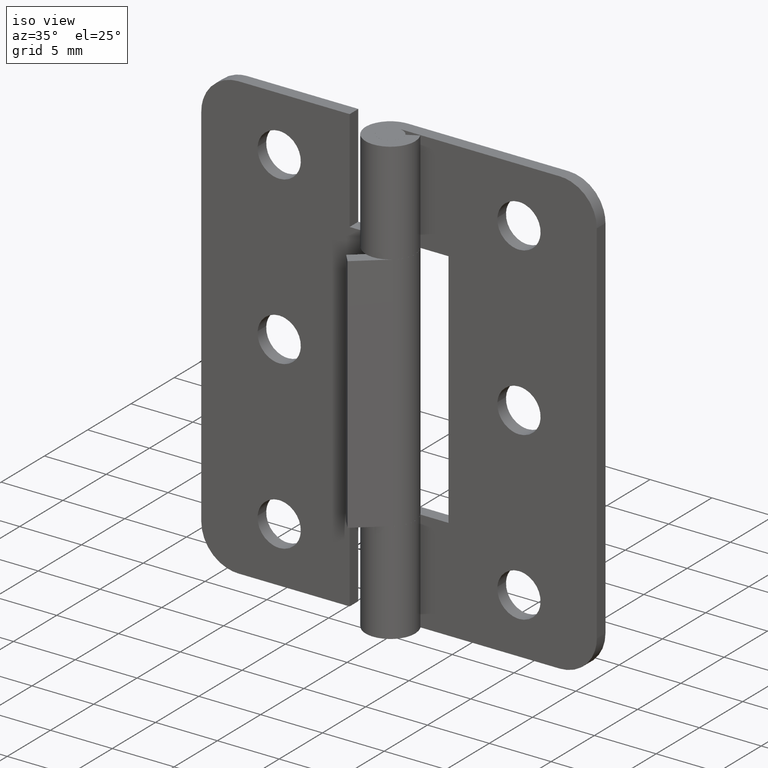
[diagram: clean part render]
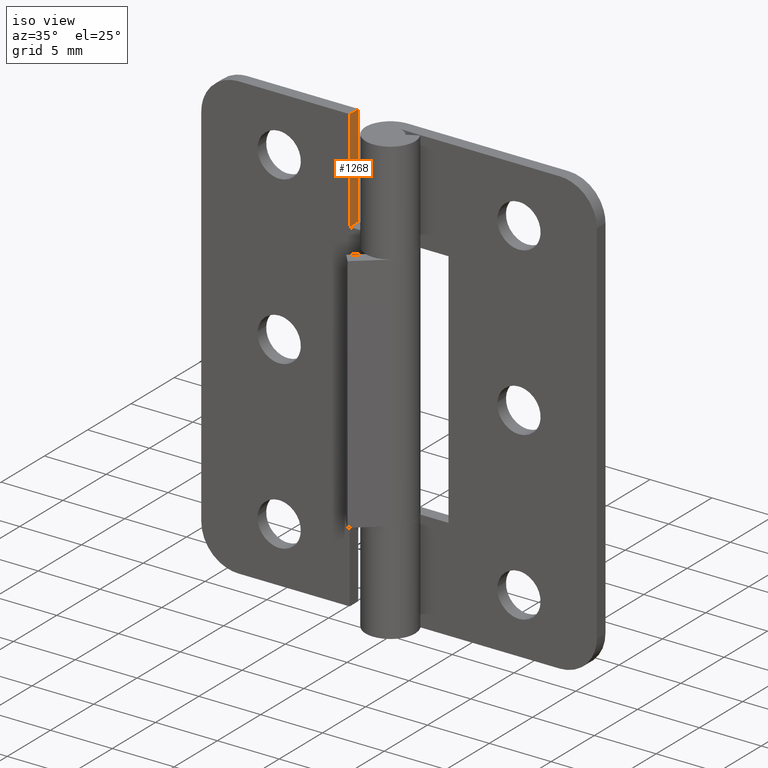
[diagram: same view with one face highlighted and labeled with its STEP entity id]
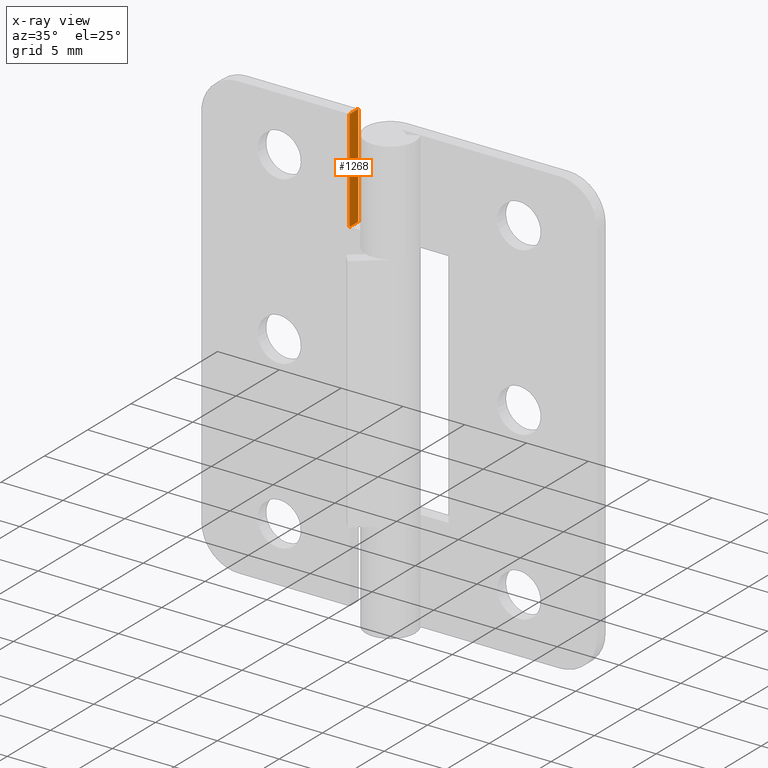
[diagram: x-ray of the same camera — body ghosted, the highlighted face saturated]
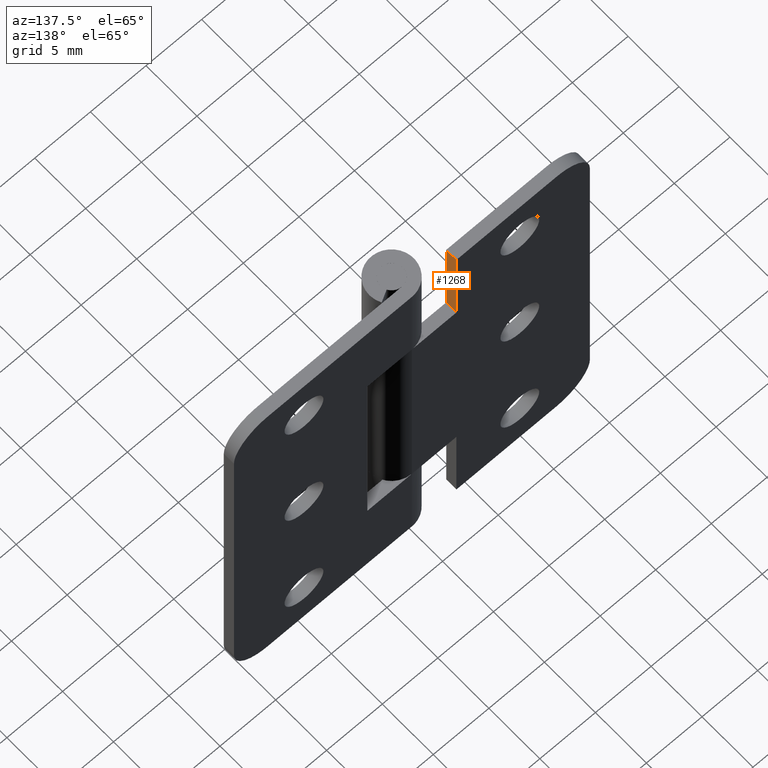
[diagram: same view with one face highlighted and labeled with its STEP entity id]
A machine part, iso view. The second image highlights one B-rep face of the part: STEP entity #1268.
The next image is the same camera in x-ray: the body ghosted, the highlighted face saturated — about 0% of this face is hidden behind the body in this view.
A second angle (auxiliary view) of the same face is appended — the face is thin or edge-on in the first view.
In plain terms, the highlighted face is a freeform B-spline surface patch.
Its self-contained STEP definition (entity closure, byte-faithful):
#1052=CARTESIAN_POINT('',(-4.0,1.0,27.750000000000000));
#1053=VERTEX_POINT('',#1052);
#1054=CARTESIAN_POINT('',(-4.0,2.0,27.750000000000000));
#1055=VERTEX_POINT('',#1054);
#1056=CARTESIAN_POINT('',(-4.0,1.0,27.750000000000000));
#1057=CARTESIAN_POINT('',(-4.0,2.0,27.750000000000000));
#1058=QUASI_UNIFORM_CURVE('',1,(#1056,#1057),.UNSPECIFIED.,.F.,.U.);
#1059=EDGE_CURVE('',#1053,#1055,#1058,.T.);
#1241=CARTESIAN_POINT('',(-4.0,0.950050001938194,27.337912515990102));
#1242=CARTESIAN_POINT('',(-4.0,0.950050001938194,36.412087705292151));
#1243=CARTESIAN_POINT('',(-4.0,2.049950024883896,27.337912515990102));
#1244=CARTESIAN_POINT('',(-4.0,2.049950024883896,36.412087705292151));
#1245=B_SPLINE_SURFACE_WITH_KNOTS('',1,1,((#1241,#1243),(#1242,#1244)),.UNSPECIFIED.,.F.,.F.,.U.,(2,2),(2,2),(0.0,9.074175189302054),(0.041708334948495,0.958291687403247),.UNSPECIFIED.);
#1246=CARTESIAN_POINT('',(-4.0,1.0,36.0));
#1247=VERTEX_POINT('',#1246);
#1248=CARTESIAN_POINT('',(-4.0,1.0,27.750000000000000));
#1249=CARTESIAN_POINT('',(-4.0,1.0,36.0));
#1250=QUASI_UNIFORM_CURVE('',1,(#1248,#1249),.UNSPECIFIED.,.F.,.U.);
#1251=EDGE_CURVE('',#1053,#1247,#1250,.T.);
#1252=ORIENTED_EDGE('',*,*,#1251,.F.);
#1253=ORIENTED_EDGE('',*,*,#1059,.T.);
#1254=CARTESIAN_POINT('',(-4.0,2.0,36.0));
#1255=VERTEX_POINT('',#1254);
#1256=CARTESIAN_POINT('',(-4.0,2.0,27.750000000000000));
#1257=CARTESIAN_POINT('',(-4.0,2.0,36.0));
#1258=QUASI_UNIFORM_CURVE('',1,(#1256,#1257),.UNSPECIFIED.,.F.,.U.);
#1259=EDGE_CURVE('',#1055,#1255,#1258,.T.);
#1260=ORIENTED_EDGE('',*,*,#1259,.T.);
#1261=CARTESIAN_POINT('',(-4.0,1.0,36.0));
#1262=CARTESIAN_POINT('',(-4.0,2.0,36.0));
#1263=QUASI_UNIFORM_CURVE('',1,(#1261,#1262),.UNSPECIFIED.,.F.,.U.);
#1264=EDGE_CURVE('',#1247,#1255,#1263,.T.);
#1265=ORIENTED_EDGE('',*,*,#1264,.F.);
#1266=EDGE_LOOP('',(#1252,#1253,#1260,#1265));
#1267=FACE_OUTER_BOUND('',#1266,.T.);
#1268=ADVANCED_FACE('',(#1267),#1245,.F.);